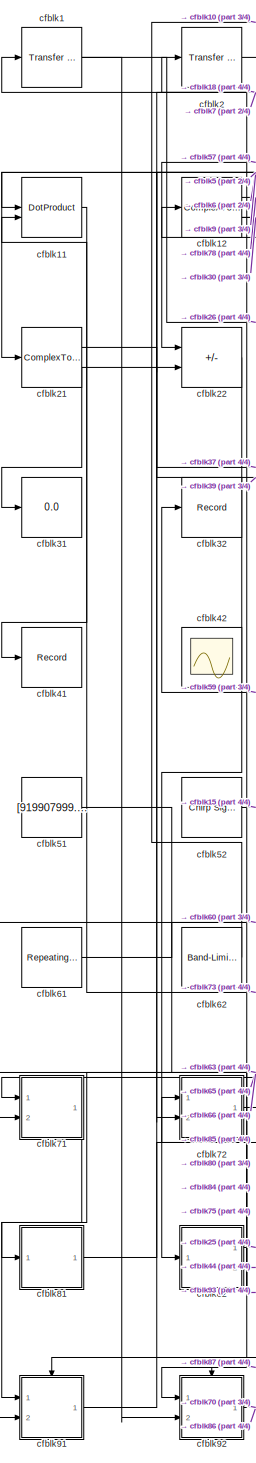
[diagram: root canvas - part 1/4, left side, full height]
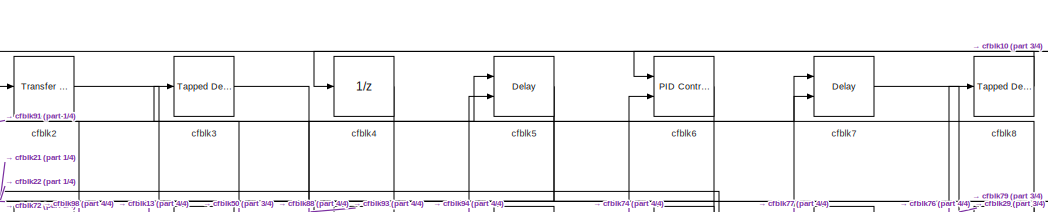
[diagram: root canvas - part 2/4, top center region]
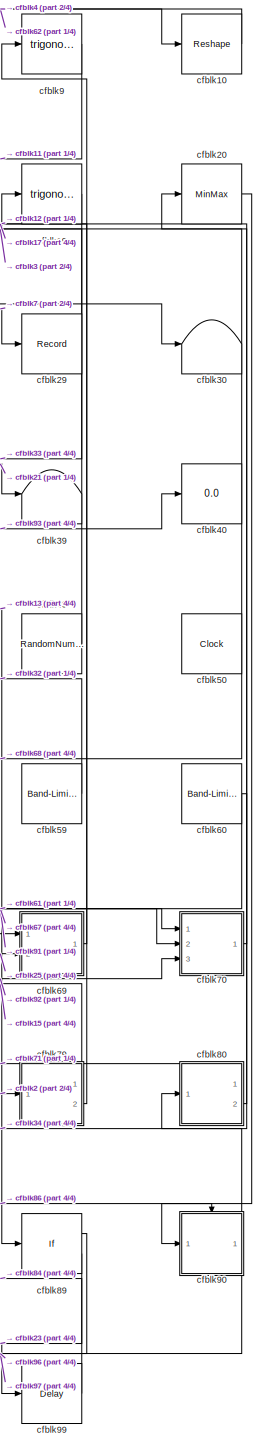
[diagram: root canvas - part 3/4, right side, full height]
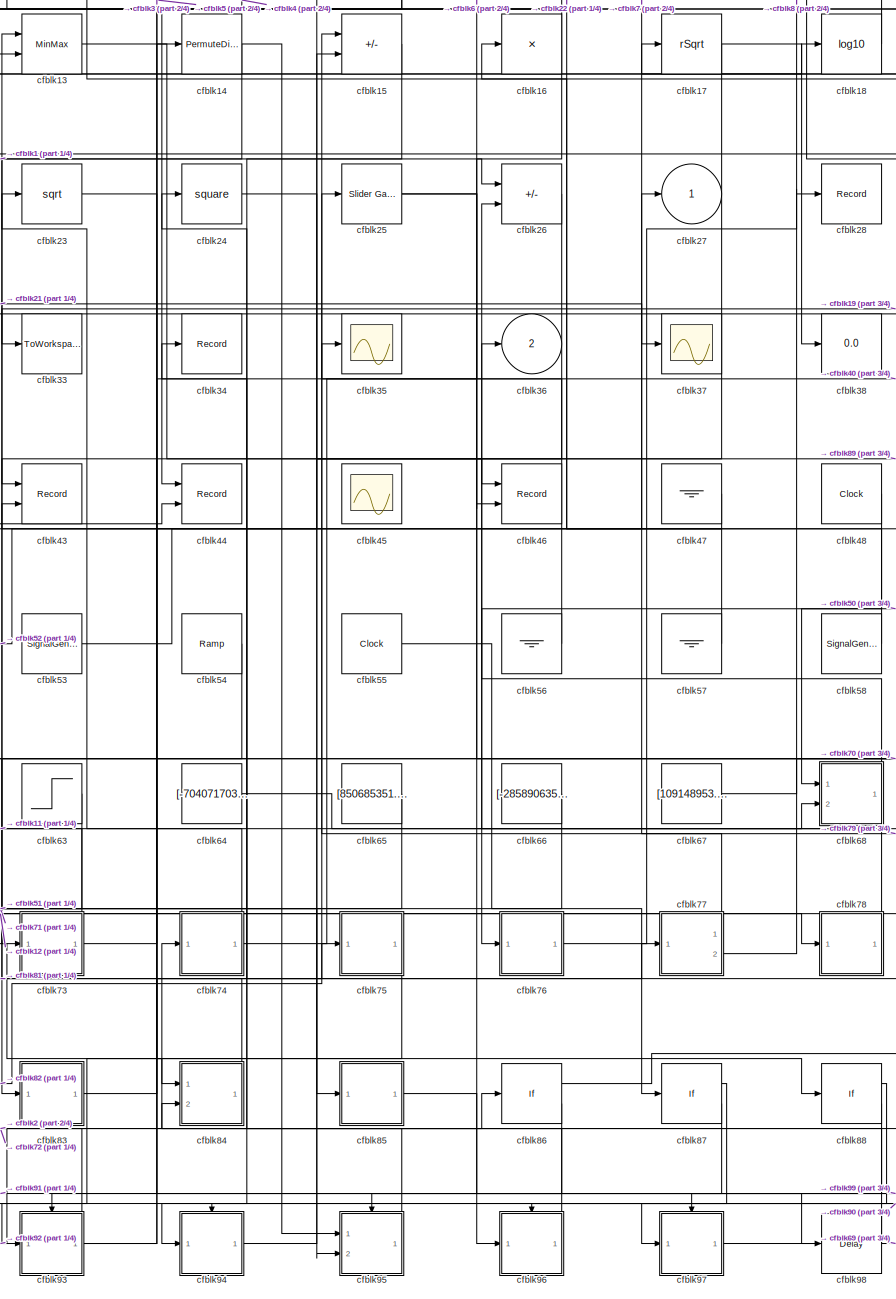
[diagram: root canvas - part 4/4, center side, full height]
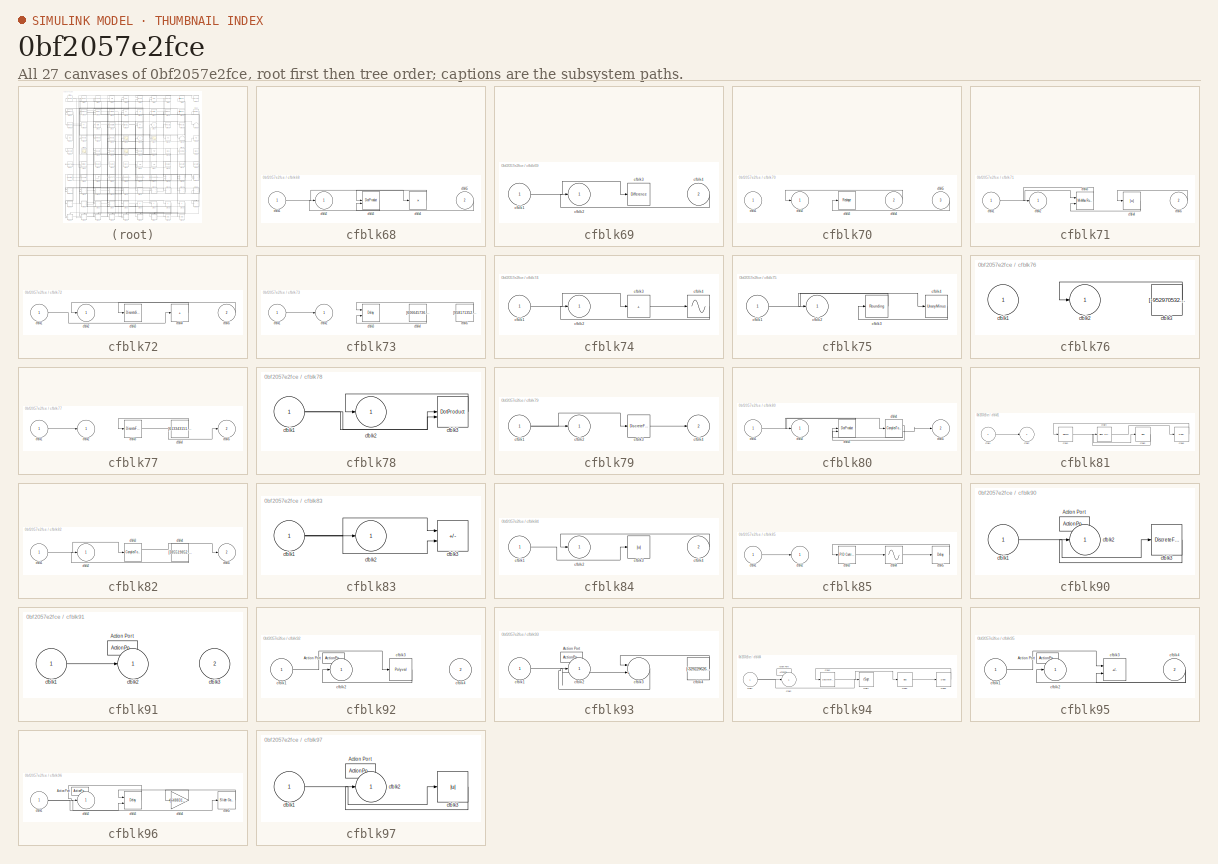
[diagram: thumbnail index - all 27 canvases of the model, root first then tree order]
MODEL slx_0bf2057e2fce
KIND model
CONFIG AbsTol = auto
CONFIG EnableMultiTasking = off
CONFIG FixedStep = auto
CONFIG MaxStep = auto
CONFIG MinStep = auto
CONFIG RelTol = 1e-3
CONFIG SampleTimeConstraint = Unconstrained
CONFIG SolverName = VariableStepAuto
CONFIG StartTime = 0.0
CONFIG StopTime = 10.0
BLOCK [Reference] cfblk1  REF=simulink/Discrete/Transfer Fcn
Real Zero
  Ports = [1, 1]
  SourceBlock = simulink/Discrete/Transfer Fcn\nReal Zero
  SourceProductBaseCode = SL
  SourceType = Transfer Fcn Real Zero
BLOCK [Reshape] cfblk10
  Ports = [1, 1]
BLOCK [DotProduct] cfblk11
  OutDataTypeStr = Inherit: Inherit via internal rule
BLOCK [ComplexToRealImag] cfblk12
  Ports = [1, 2]
BLOCK [MinMax] cfblk13
  Inputs = 2
  Ports = [2, 1]
BLOCK [PermuteDimensions] cfblk14
BLOCK [Sum] cfblk15
  IconShape = rectangular
  Inputs = +-
  Ports = [2, 1]
BLOCK [Product] cfblk16
  Inputs = *
  Ports = [1, 1]
BLOCK [Sqrt] cfblk17
  AlgorithmType = Newton-Raphson
  Operator = rSqrt
BLOCK [Math] cfblk18
  Operator = log10
  Ports = [1, 1]
BLOCK [Trigonometry] cfblk19
  Ports = [1, 1]
BLOCK [Reference] cfblk2  REF=simulink/Discrete/Transfer Fcn
First Order
  Ports = [1, 1]
  SourceBlock = simulink/Discrete/Transfer Fcn\nFirst Order
  SourceProductBaseCode = SL
  SourceType = First Order Transfer Fcn
BLOCK [MinMax] cfblk20
  Ports = [1, 1]
BLOCK [ComplexToMagnitudeAngle] cfblk21
  Ports = [1, 2]
BLOCK [Sum] cfblk22
  IconShape = rectangular
  Inputs = +-
  Ports = [2, 1]
BLOCK [Sqrt] cfblk23
BLOCK [Math] cfblk24
  Operator = square
  Ports = [1, 1]
BLOCK [Reference] cfblk25  REF=simulink/Math
Operations/Slider
Gain
  Ports = [1, 1]
  SourceBlock = simulink/Math\nOperations/Slider\nGain
  SourceProductBaseCode = SL
  SourceType = Slider Gain
BLOCK [Sum] cfblk26
  IconShape = rectangular
  Inputs = +-
  Ports = [2, 1]
BLOCK [Outport] cfblk27
BLOCK [Record] cfblk28
  FileSettingsInternal = {"entries":[{"content":{"excelSettings":{"content":{},"type":"Streamout.ExcelSettings"}},"type":"Streamout.FileSettingStorage","uuid":"16329020-b7b2-48e2-bef7-29498af02094"}],"packageUris":["http://schema.mathworks.com/mf0/streamout_blocks/R2020a"],"version":"1.0"}
  Ports = [1]
  SignalsInternal = {"entries":[{"content":{"signals":[{"content":{"blockPath":["sampleModel151/cfblk28"],"channel":[],"dimensions":[1],"domain":"sampleModel151/cfblk28","lineColor":"#fe330a","plots":[1],"port":1,"sid":[""],"signalID":5566,"signalName":"cfblk77:2"},"type":"RecordBlkView.Signal","uuid":"cbec37e1-0653-4d3b-993b-30f071d7b7c2"}]},"type":"RecordBlkView.InputSignals","uuid":"1aea9fb2-e907-4a06-aea3-794993e...<+99ch>
  VisualizationBindings = {"sparklinesplugin":{"info":[{"bindingParametersList":[],"subplotID":1}]}}
BLOCK [Record] cfblk29
  FileSettingsInternal = {"entries":[{"content":{"excelSettings":{"content":{},"type":"Streamout.ExcelSettings"}},"type":"Streamout.FileSettingStorage","uuid":"ad175cd4-5bed-4ac1-be59-b4bcf34f1e7c"}],"packageUris":["http://schema.mathworks.com/mf0/streamout_blocks/R2020a"],"version":"1.0"}
  Ports = [1]
  SignalsInternal = {"entries":[{"content":{"signals":[{"content":{"blockPath":["sampleModel151/cfblk29"],"channel":[],"dimensions":[1,1],"domain":"sampleModel151/cfblk29","lineColor":"#22b573","plots":[1],"port":1,"sid":[""],"signalID":5570,"signalName":"cfblk7"},"type":"RecordBlkView.Signal","uuid":"59788e8c-d7b2-4cd3-8900-8817d59cbc28"}]},"type":"RecordBlkView.InputSignals","uuid":"d411062e-e278-425d-97f2-c320e6c0...<+98ch>
  VisualizationBindings = {"sparklinesplugin":{"info":[{"bindingParametersList":[],"subplotID":1}]}}
BLOCK [Reference] cfblk3  REF=simulink/Discrete/Tapped Delay
  Ports = [1, 1]
  SourceBlock = simulink/Discrete/Tapped Delay
  SourceProductBaseCode = SL
  SourceType = Tapped Delay Line
BLOCK [Terminator] cfblk30
BLOCK [Display] cfblk31
  Decimation = 1
  Ports = [1]
BLOCK [Record] cfblk32
  FileSettingsInternal = {"entries":[{"content":{"excelSettings":{"content":{},"type":"Streamout.ExcelSettings"}},"type":"Streamout.FileSettingStorage","uuid":"e17f7bcd-ee65-47d5-ad36-393b5ddf6025"}],"packageUris":["http://schema.mathworks.com/mf0/streamout_blocks/R2020a"],"version":"1.0"}
  Ports = [1]
  SignalsInternal = {"entries":[{"content":{"signals":[{"content":{"blockPath":["sampleModel151/cfblk32"],"channel":[],"dimensions":[1],"domain":"sampleModel151/cfblk32","lineColor":"#139fff","plots":[1],"port":1,"sid":[""],"signalID":5602,"signalName":"cfblk59"},"type":"RecordBlkView.Signal","uuid":"9c12727e-2af6-4ba1-9340-e75212aef403"}]},"type":"RecordBlkView.InputSignals","uuid":"08633602-5334-4035-af5c-359580bce...<+97ch>
  VisualizationBindings = {"sparklinesplugin":{"info":[{"bindingParametersList":[],"subplotID":1}]}}
BLOCK [ToWorkspace] cfblk33
  FixptAsFi = on
  MaxDataPoints = inf
  Ports = [1]
  SampleTime = -1
  SaveFormat = Timeseries
  VariableName = onnoozt
BLOCK [Record] cfblk34
  FileSettingsInternal = {"entries":[{"content":{"excelSettings":{"content":{},"type":"Streamout.ExcelSettings"}},"type":"Streamout.FileSettingStorage","uuid":"80bf3479-7660-47d1-b758-6739f5e518e5"}],"packageUris":["http://schema.mathworks.com/mf0/streamout_blocks/R2020a"],"version":"1.0"}
  Ports = [1]
  SignalsInternal = {"entries":[{"content":{"signals":[{"content":{"blockPath":["sampleModel151/cfblk34"],"channel":[],"dimensions":[1],"domain":"sampleModel151/cfblk34","lineColor":"#0072bd","plots":[1],"port":1,"sid":[""],"signalID":5574,"signalName":"cfblk90"},"type":"RecordBlkView.Signal","uuid":"52cf2cfa-6272-4b00-98cf-892733082b01"}]},"type":"RecordBlkView.InputSignals","uuid":"b0825b05-81fc-4d9b-a675-fd2775611...<+97ch>
  VisualizationBindings = {"sparklinesplugin":{"info":[{"bindingParametersList":[],"subplotID":1}]}}
BLOCK [Scope] cfblk35
  Floating = off
  NumInputPorts = 1
  Ports = [1]
BLOCK [Outport] cfblk36
  Port = 2
BLOCK [Scope] cfblk37
  Floating = off
  NumInputPorts = 1
  Ports = [1]
BLOCK [Display] cfblk38
  Decimation = 1
  Ports = [1]
BLOCK [Terminator] cfblk39
BLOCK [UnitDelay] cfblk4
  HasFrameUpgradeWarning = on
BLOCK [Display] cfblk40
  Decimation = 1
  Ports = [1]
BLOCK [Record] cfblk41
  FileSettingsInternal = {"entries":[{"content":{"excelSettings":{"content":{},"type":"Streamout.ExcelSettings"}},"type":"Streamout.FileSettingStorage","uuid":"e783f573-5e51-434e-8b39-352c88833e99"}],"packageUris":["http://schema.mathworks.com/mf0/streamout_blocks/R2020a"],"version":"1.0"}
  Ports = [1]
  SignalsInternal = {"entries":[{"content":{"signals":[{"content":{"blockPath":["sampleModel151/cfblk41"],"channel":[],"dimensions":[1],"domain":"sampleModel151/cfblk41","lineColor":"#d95319","plots":[1],"port":1,"sid":[""],"signalID":5578,"signalName":"cfblk11"},"type":"RecordBlkView.Signal","uuid":"9378f9bf-08aa-425a-ab1e-6e49c199abac"}]},"type":"RecordBlkView.InputSignals","uuid":"4020c576-885d-4cd6-9814-44353d409...<+97ch>
  VisualizationBindings = {"sparklinesplugin":{"info":[{"bindingParametersList":[],"subplotID":1}]}}
BLOCK [Scope] cfblk42
  Floating = on
  NumInputPorts = 1
  Ports = []
BLOCK [Record] cfblk43
  CompatibilityTag = XY
  FileSettingsInternal = {"entries":[{"content":{"excelSettings":{"content":{},"type":"Streamout.ExcelSettings"}},"type":"Streamout.FileSettingStorage","uuid":"0c75c6a2-1ebc-4dbd-9707-8aa0bfb7056d"}],"packageUris":["http://schema.mathworks.com/mf0/streamout_blocks/R2020a"],"version":"1.0"}
  Layout = [1 1]
  Ports = [2]
  SignalsInternal = {"entries":[{"content":{"signals":[{"content":{"blockPath":["sampleModel151/cfblk43"],"channel":[],"dimensions":[1],"domain":"sampleModel151/cfblk43","lineColor":"#a2142f","plots":[1],"port":1,"sid":[""],"signalID":5582,"signalName":"cfblk26"},"type":"RecordBlkView.Signal","uuid":"05fc9d93-6de0-4f23-9265-e6d9e86d6584"},{"content":{"blockPath":["sampleModel151/cfblk43"],"channel":[],"dimensions":[1...<+383ch>
  VisualizationBindings = {"xyplotplugin":{"info":[{"series":[{"bindingParametersList":[{"parameter":"X-Axis","signalID":5582,"signalName":"cfblk26"},{"parameter":"Y-Axis","signalID":5606,"signalName":"cfblk47"}],"seriesID":51947}],"subplotID":1}]}}
BLOCK [Record] cfblk44
  CompatibilityTag = XY
  FileSettingsInternal = {"entries":[{"content":{"excelSettings":{"content":{},"type":"Streamout.ExcelSettings"}},"type":"Streamout.FileSettingStorage","uuid":"e408540b-f554-4ccd-875e-bc098b567ff3"}],"packageUris":["http://schema.mathworks.com/mf0/streamout_blocks/R2020a"],"version":"1.0"}
  Layout = [1 1]
  Ports = [2]
  SignalsInternal = {"entries":[{"content":{"signals":[{"content":{"blockPath":["sampleModel151/cfblk44"],"channel":[],"dimensions":[1],"domain":"sampleModel151/cfblk44","lineColor":"#a2142f","plots":[1],"port":1,"sid":[""],"signalID":5586,"signalName":"cfblk16"},"type":"RecordBlkView.Signal","uuid":"6af45d05-4fcc-41dc-a0e5-1353e5ef8c24"},{"content":{"blockPath":["sampleModel151/cfblk44"],"channel":[],"dimensions":[1...<+385ch>
  VisualizationBindings = {"xyplotplugin":{"info":[{"series":[{"bindingParametersList":[{"parameter":"X-Axis","signalID":5586,"signalName":"cfblk16"},{"parameter":"Y-Axis","signalID":5590,"signalName":"cfblk82:2"}],"seriesID":36672}],"subplotID":1}]}}
BLOCK [Scope] cfblk45
  Floating = on
  NumInputPorts = 1
  Ports = []
BLOCK [Record] cfblk46
  CompatibilityTag = XY
  FileSettingsInternal = {"entries":[{"content":{"excelSettings":{"content":{},"type":"Streamout.ExcelSettings"}},"type":"Streamout.FileSettingStorage","uuid":"872aefc3-b221-4a71-9802-efcb06a78721"}],"packageUris":["http://schema.mathworks.com/mf0/streamout_blocks/R2020a"],"version":"1.0"}
  Layout = [1 1]
  Ports = [2]
  SignalsInternal = {"entries":[{"content":{"signals":[{"content":{"blockPath":["sampleModel151/cfblk46"],"channel":[],"dimensions":[1],"domain":"sampleModel151/cfblk46","lineColor":"#a2142f","plots":[1],"port":1,"sid":[""],"signalID":5594,"signalName":"cfblk24"},"type":"RecordBlkView.Signal","uuid":"f73d4481-3b9c-43d6-816d-b610603f159a"},{"content":{"blockPath":["sampleModel151/cfblk46"],"channel":[],"dimensions":[1...<+383ch>
  VisualizationBindings = {"xyplotplugin":{"info":[{"series":[{"bindingParametersList":[{"parameter":"X-Axis","signalID":5594,"signalName":"cfblk24"},{"parameter":"Y-Axis","signalID":5598,"signalName":"cfblk16"}],"seriesID":29055}],"subplotID":1}]}}
BLOCK [Ground] cfblk47
BLOCK [Clock] cfblk48
BLOCK [RandomNumber] cfblk49
  Mean = [30540.773261]
  SampleTime = 0.1
  Seed = [260701924.000000]
  Variance = [36221.773960]
BLOCK [Delay] cfblk5
  InputPortMap = u0,e6
  Ports = [2, 1]
  SampleTime = 1
  ShowEnablePort = on
BLOCK [Clock] cfblk50
BLOCK [Constant] cfblk51
  SampleTime = 1
  Value = [919907999.976318]
BLOCK [Reference] cfblk52  REF=simulink/Sources/Chirp Signal
  Ports = [0, 1]
  SourceBlock = simulink/Sources/Chirp Signal
  SourceProductBaseCode = SL
  SourceType = chirp
BLOCK [SignalGenerator] cfblk53
  Amplitude = [-680922363.172468]
  Ports = [0, 1]
  WaveForm = sawtooth
BLOCK [Reference] cfblk54  REF=simulink/Sources/Ramp
  Ports = [0, 1]
  SourceBlock = simulink/Sources/Ramp
  SourceProductBaseCode = SL
  SourceType = Ramp
BLOCK [Clock] cfblk55
BLOCK [Ground] cfblk56
BLOCK [Ground] cfblk57
BLOCK [SignalGenerator] cfblk58
  Amplitude = [-424760600.039455]
  Ports = [0, 1]
  WaveForm = sawtooth
BLOCK [Reference] cfblk59  REF=simulink/Sources/Band-Limited
White Noise
  Ports = [0, 1]
  SourceBlock = simulink/Sources/Band-Limited\nWhite Noise
  SourceProductBaseCode = SL
  SourceType = Band-Limited White Noise.
BLOCK [Reference] cfblk6  REF=slpidlib/PID Controller (2DOF)
  Ports = [2, 1]
  SourceBlock = slpidlib/PID Controller (2DOF)
  SourceProductBaseCode = SL
  SourceType = PID 2dof
BLOCK [Reference] cfblk60  REF=simulink/Sources/Band-Limited
White Noise
  Ports = [0, 1]
  SourceBlock = simulink/Sources/Band-Limited\nWhite Noise
  SourceProductBaseCode = SL
  SourceType = Band-Limited White Noise.
BLOCK [Reference] cfblk61  REF=simulink/Sources/Repeating
Sequence
Interpolated
  Ports = [0, 1]
  SourceBlock = simulink/Sources/Repeating\nSequence\nInterpolated
  SourceProductBaseCode = SL
  SourceType = Repeating Sequence Interpolated
BLOCK [Reference] cfblk62  REF=simulink/Sources/Band-Limited
White Noise
  Ports = [0, 1]
  SourceBlock = simulink/Sources/Band-Limited\nWhite Noise
  SourceProductBaseCode = SL
  SourceType = Band-Limited White Noise.
BLOCK [Step] cfblk63
  After = [23174660.640238]
  Before = [11276169.714796]
  SampleTime = 0
  Time = [4.000000]
BLOCK [Constant] cfblk64
  SampleTime = 1
  Value = [-704071703.369690]
BLOCK [Constant] cfblk65
  SampleTime = 1
  Value = [850685351.348287]
BLOCK [Constant] cfblk66
  SampleTime = 1
  Value = [-285890635.746672]
BLOCK [Constant] cfblk67
  SampleTime = 1
  Value = [109148953.023696]
BLOCK [SubSystem] cfblk68
  Ports = [2, 1]
  RequestExecContextInheritance = off
BLOCK [Inport] cfblk68/cfblk1
BLOCK [Outport] cfblk68/cfblk2
BLOCK [DotProduct] cfblk68/cfblk3
  OutDataTypeStr = Inherit: Inherit via internal rule
BLOCK [Product] cfblk68/cfblk4
  Inputs = *
  Ports = [1, 1]
BLOCK [Inport] cfblk68/cfblk5
  Port = 2
BLOCK [SubSystem] cfblk69
  Ports = [2, 1]
  RequestExecContextInheritance = off
BLOCK [Inport] cfblk69/cfblk1
BLOCK [Outport] cfblk69/cfblk2
BLOCK [Reference] cfblk69/cfblk3  REF=simulink/Discrete/Difference
  Ports = [1, 1]
  SourceBlock = simulink/Discrete/Difference
  SourceProductBaseCode = SL
  SourceType = Difference
BLOCK [Inport] cfblk69/cfblk4
  Port = 2
BLOCK [Delay] cfblk7
  InputPortMap = u0,e6
  Ports = [2, 1]
  SampleTime = 1
  ShowEnablePort = on
BLOCK [SubSystem] cfblk70
  Ports = [3, 1]
  RequestExecContextInheritance = off
BLOCK [Inport] cfblk70/cfblk1
BLOCK [Outport] cfblk70/cfblk2
BLOCK [Reshape] cfblk70/cfblk3
  Ports = [1, 1]
BLOCK [Inport] cfblk70/cfblk4
  Port = 2
BLOCK [Inport] cfblk70/cfblk5
  Port = 3
BLOCK [SubSystem] cfblk71
  Ports = [2, 1]
  RequestExecContextInheritance = off
BLOCK [Inport] cfblk71/cfblk1
BLOCK [Outport] cfblk71/cfblk2
BLOCK [Reference] cfblk71/cfblk3  REF=simulink/Math
Operations/MinMax
Running
Resettable
  Ports = [2, 1]
  SourceBlock = simulink/Math\nOperations/MinMax\nRunning\nResettable
  SourceProductBaseCode = SL
  SourceType = MinMax Running Resettable
BLOCK [Abs] cfblk71/cfblk4
  SaturateOnIntegerOverflow = off
BLOCK [Inport] cfblk71/cfblk5
  Port = 2
BLOCK [SubSystem] cfblk72
  Ports = [2, 1]
  RequestExecContextInheritance = off
BLOCK [Inport] cfblk72/cfblk1
BLOCK [Outport] cfblk72/cfblk2
BLOCK [DiscreteStateSpace] cfblk72/cfblk3
BLOCK [Sum] cfblk72/cfblk4
  IconShape = rectangular
  Inputs = +
  Ports = [1, 1]
BLOCK [Inport] cfblk72/cfblk5
  Port = 2
BLOCK [SubSystem] cfblk73
  Ports = [1, 1]
  RequestExecContextInheritance = off
BLOCK [Inport] cfblk73/cfblk1
BLOCK [Outport] cfblk73/cfblk2
BLOCK [Delay] cfblk73/cfblk3
  DelayLengthSource = Input port
  InputPortMap = u0,p1
  Ports = [2, 1]
  SampleTime = 1
BLOCK [Constant] cfblk73/cfblk4
  SampleTime = 1
  Value = [606645736.850236]
BLOCK [Constant] cfblk73/cfblk5
  SampleTime = 1
  Value = [958171352.098820]
BLOCK [SubSystem] cfblk74
  Ports = [1, 1]
  RequestExecContextInheritance = off
BLOCK [Inport] cfblk74/cfblk1
BLOCK [Outport] cfblk74/cfblk2
BLOCK [Sum] cfblk74/cfblk3
  IconShape = rectangular
  Inputs = +
  Ports = [1, 1]
BLOCK [Sin] cfblk74/cfblk4
  Ports = [1, 1]
  SampleTime = 0
  TimeSource = Use external signal
BLOCK [SubSystem] cfblk75
  Ports = [1, 1]
  RequestExecContextInheritance = off
BLOCK [Inport] cfblk75/cfblk1
BLOCK [Outport] cfblk75/cfblk2
BLOCK [Rounding] cfblk75/cfblk3
BLOCK [UnaryMinus] cfblk75/cfblk4
BLOCK [SubSystem] cfblk76
  Ports = [1, 1]
  RequestExecContextInheritance = off
BLOCK [Inport] cfblk76/cfblk1
BLOCK [Outport] cfblk76/cfblk2
BLOCK [Constant] cfblk76/cfblk3
  SampleTime = 1
  Value = [-952970532.415323]
BLOCK [SubSystem] cfblk77
  Ports = [1, 2]
  RequestExecContextInheritance = off
BLOCK [Inport] cfblk77/cfblk1
BLOCK [Outport] cfblk77/cfblk2
BLOCK [DiscreteFir] cfblk77/cfblk3
  InputPortMap = u0
  OutputPortMap = o0
  Ports = [1, 1]
  SampleTime = 1
BLOCK [Constant] cfblk77/cfblk4
  SampleTime = 1
  Value = [613343151.446555]
BLOCK [Outport] cfblk77/cfblk5
  Port = 2
BLOCK [SubSystem] cfblk78
  Ports = [1, 1]
  RequestExecContextInheritance = off
BLOCK [Inport] cfblk78/cfblk1
BLOCK [Outport] cfblk78/cfblk2
BLOCK [DotProduct] cfblk78/cfblk3
  OutDataTypeStr = Inherit: Inherit via internal rule
BLOCK [SubSystem] cfblk79
  Ports = [1, 2]
  RequestExecContextInheritance = off
BLOCK [Inport] cfblk79/cfblk1
BLOCK [Outport] cfblk79/cfblk2
BLOCK [DiscreteFir] cfblk79/cfblk3
  InputPortMap = u0
  OutputPortMap = o0
  Ports = [1, 1]
  SampleTime = 1
BLOCK [Outport] cfblk79/cfblk4
  Port = 2
BLOCK [Reference] cfblk8  REF=simulink/Discrete/Tapped Delay
  Ports = [1, 1]
  SourceBlock = simulink/Discrete/Tapped Delay
  SourceProductBaseCode = SL
  SourceType = Tapped Delay Line
BLOCK [SubSystem] cfblk80
  Ports = [1, 2]
  RequestExecContextInheritance = off
BLOCK [Inport] cfblk80/cfblk1
BLOCK [Outport] cfblk80/cfblk2
BLOCK [DotProduct] cfblk80/cfblk3
  OutDataTypeStr = Inherit: Inherit via internal rule
BLOCK [ComplexToMagnitudeAngle] cfblk80/cfblk4
  Ports = [1, 2]
BLOCK [Outport] cfblk80/cfblk5
  Port = 2
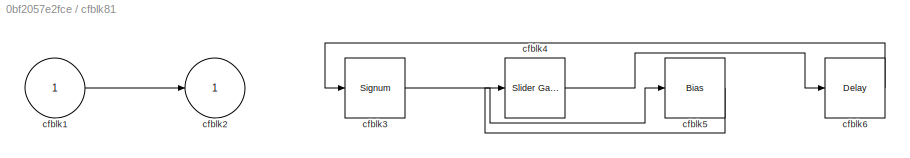
BLOCK [SubSystem] cfblk81
  Ports = [1, 1]
  RequestExecContextInheritance = off
BLOCK [Inport] cfblk81/cfblk1
BLOCK [Outport] cfblk81/cfblk2
BLOCK [Signum] cfblk81/cfblk3
BLOCK [Reference] cfblk81/cfblk4  REF=simulink/Math
Operations/Slider
Gain
  Ports = [1, 1]
  SourceBlock = simulink/Math\nOperations/Slider\nGain
  SourceProductBaseCode = SL
  SourceType = Slider Gain
BLOCK [Bias] cfblk81/cfblk5
  Bias = [575150520.088075]
  SaturateOnIntegerOverflow = off
BLOCK [Delay] cfblk81/cfblk6
  InputPortMap = u0
  Ports = [1, 1]
  SampleTime = 1
BLOCK [SubSystem] cfblk82
  Ports = [1, 2]
  RequestExecContextInheritance = off
BLOCK [Inport] cfblk82/cfblk1
BLOCK [Outport] cfblk82/cfblk2
BLOCK [ComplexToRealImag] cfblk82/cfblk3
  Ports = [1, 2]
BLOCK [Constant] cfblk82/cfblk4
  SampleTime = 1
  Value = [385519852.489659]
BLOCK [Outport] cfblk82/cfblk5
  Port = 2
BLOCK [SubSystem] cfblk83
  Ports = [1, 1]
  RequestExecContextInheritance = off
BLOCK [Inport] cfblk83/cfblk1
BLOCK [Outport] cfblk83/cfblk2
BLOCK [Sum] cfblk83/cfblk3
  IconShape = rectangular
  Inputs = +-
  Ports = [2, 1]
BLOCK [SubSystem] cfblk84
  Ports = [2, 1]
  RequestExecContextInheritance = off
BLOCK [Inport] cfblk84/cfblk1
BLOCK [Outport] cfblk84/cfblk2
BLOCK [Abs] cfblk84/cfblk3
  SaturateOnIntegerOverflow = off
BLOCK [Inport] cfblk84/cfblk4
  Port = 2
BLOCK [SubSystem] cfblk85
  Ports = [1, 1]
  RequestExecContextInheritance = off
BLOCK [Inport] cfblk85/cfblk1
BLOCK [Outport] cfblk85/cfblk2
BLOCK [Reference] cfblk85/cfblk3  REF=slpidlib/PID Controller
  Ports = [1, 1]
  SourceBlock = slpidlib/PID Controller
  SourceProductBaseCode = SL
  SourceType = PID 1dof
BLOCK [Sin] cfblk85/cfblk4
  Ports = [1, 1]
  SampleTime = 0
  TimeSource = Use external signal
BLOCK [Delay] cfblk85/cfblk5
  InputPortMap = u0
  Ports = [1, 1]
  SampleTime = 1
BLOCK [If] cfblk86
  IfExpression = u1 >= 0
  Ports = [1, 2]
  SampleTime = 1
BLOCK [If] cfblk87
  IfExpression = u1 >= 0
  Ports = [1, 2]
  SampleTime = 1
BLOCK [If] cfblk88
  IfExpression = u1 >= 0
  Ports = [1, 2]
  SampleTime = 1
BLOCK [If] cfblk89
  IfExpression = u1 >= 0
  Ports = [1, 2]
  SampleTime = 1
BLOCK [Trigonometry] cfblk9
  Ports = [1, 1]
BLOCK [SubSystem] cfblk90
  Ports = [1, 1, 0, 0, 0, 0, 0, 1]
  RequestExecContextInheritance = off
  TreatAsAtomicUnit = on
BLOCK [ActionPort] cfblk90/Action Port
  ActionPortLabel = if(u1 >= 0)
BLOCK [Inport] cfblk90/cfblk1
BLOCK [Outport] cfblk90/cfblk2
BLOCK [DiscreteFir] cfblk90/cfblk3
  InputPortMap = u0
  OutputPortMap = o0
  Ports = [1, 1]
BLOCK [SubSystem] cfblk91
  Ports = [2, 1, 0, 0, 0, 0, 0, 1]
  RequestExecContextInheritance = off
  TreatAsAtomicUnit = on
BLOCK [ActionPort] cfblk91/Action Port
  ActionPortLabel = else
BLOCK [Inport] cfblk91/cfblk1
BLOCK [Outport] cfblk91/cfblk2
BLOCK [Inport] cfblk91/cfblk3
  Port = 2
BLOCK [SubSystem] cfblk92
  Ports = [2, 1, 0, 0, 0, 0, 0, 1]
  RequestExecContextInheritance = off
  TreatAsAtomicUnit = on
BLOCK [ActionPort] cfblk92/Action Port
  ActionPortLabel = if(u1 >= 0)
BLOCK [Inport] cfblk92/cfblk1
BLOCK [Outport] cfblk92/cfblk2
BLOCK [Polyval] cfblk92/cfblk3
  Coefs = [ +2.081618890e-019, -1.441693666e-014, +4.719686976e-010, -8.536869453e-006, +1.621573104e-001, -8.087801117e+001 ]
BLOCK [Inport] cfblk92/cfblk4
  Port = 2
BLOCK [SubSystem] cfblk93
  Ports = [1, 1, 0, 0, 0, 0, 0, 1]
  RequestExecContextInheritance = off
  TreatAsAtomicUnit = on
BLOCK [ActionPort] cfblk93/Action Port
  ActionPortLabel = else
BLOCK [Inport] cfblk93/cfblk1
BLOCK [Outport] cfblk93/cfblk2
BLOCK [Sum] cfblk93/cfblk3
  Inputs = |++
  Ports = [2, 1]
BLOCK [Constant] cfblk93/cfblk4
  SampleTime = 1
  Value = [-329229626.774821]
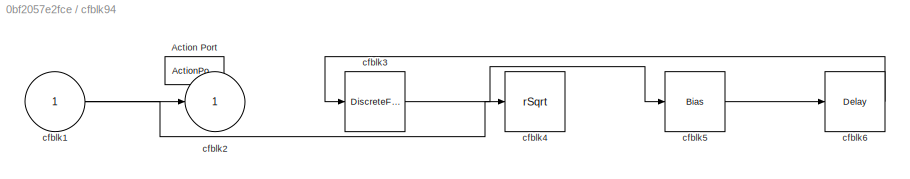
BLOCK [SubSystem] cfblk94
  Ports = [1, 1, 0, 0, 0, 0, 0, 1]
  RequestExecContextInheritance = off
  TreatAsAtomicUnit = on
BLOCK [ActionPort] cfblk94/Action Port
  ActionPortLabel = if(u1 >= 0)
BLOCK [Inport] cfblk94/cfblk1
BLOCK [Outport] cfblk94/cfblk2
BLOCK [DiscreteFilter] cfblk94/cfblk3
  InputPortMap = u0
  Ports = [1, 1]
BLOCK [Sqrt] cfblk94/cfblk4
  AlgorithmType = Newton-Raphson
  Operator = rSqrt
BLOCK [Bias] cfblk94/cfblk5
  Bias = [283350324.778688]
  SaturateOnIntegerOverflow = off
BLOCK [Delay] cfblk94/cfblk6
  InputPortMap = u0
  Ports = [1, 1]
BLOCK [SubSystem] cfblk95
  Ports = [2, 1, 0, 0, 0, 0, 0, 1]
  RequestExecContextInheritance = off
  TreatAsAtomicUnit = on
BLOCK [ActionPort] cfblk95/Action Port
  ActionPortLabel = else
BLOCK [Inport] cfblk95/cfblk1
BLOCK [Outport] cfblk95/cfblk2
BLOCK [Sum] cfblk95/cfblk3
  IconShape = rectangular
  Inputs = +-
  Ports = [2, 1]
BLOCK [Inport] cfblk95/cfblk4
  Port = 2
BLOCK [SubSystem] cfblk96
  Ports = [1, 1, 0, 0, 0, 0, 0, 1]
  RequestExecContextInheritance = off
  TreatAsAtomicUnit = on
BLOCK [ActionPort] cfblk96/Action Port
  ActionPortLabel = if(u1 >= 0)
BLOCK [Inport] cfblk96/cfblk1
BLOCK [Outport] cfblk96/cfblk2
BLOCK [Delay] cfblk96/cfblk3
  InputPortMap = u0,e6
  Ports = [2, 1]
  ShowEnablePort = on
BLOCK [Gain] cfblk96/cfblk4
  Gain = [648831210.103577]
BLOCK [Reference] cfblk96/cfblk5  REF=simulink/Math
Operations/Slider
Gain
  Ports = [1, 1]
  SourceBlock = simulink/Math\nOperations/Slider\nGain
  SourceProductBaseCode = SL
  SourceType = Slider Gain
BLOCK [SubSystem] cfblk97
  Ports = [1, 1, 0, 0, 0, 0, 0, 1]
  RequestExecContextInheritance = off
  TreatAsAtomicUnit = on
BLOCK [ActionPort] cfblk97/Action Port
  ActionPortLabel = else
BLOCK [Inport] cfblk97/cfblk1
BLOCK [Outport] cfblk97/cfblk2
BLOCK [Abs] cfblk97/cfblk3
  SaturateOnIntegerOverflow = off
BLOCK [Delay] cfblk98
  InputPortMap = u0
  Ports = [1, 1]
  SampleTime = 1
BLOCK [Delay] cfblk99
  InputPortMap = u0
  Ports = [1, 1]
  SampleTime = 1
LINE cfblk10:1 -> cfblk4:1
LINE cfblk11:1 -> cfblk41:1
LINE cfblk12:1 -> cfblk78:1
NET cfblk12:2 -> cfblk18:1, cfblk30:1
LINE cfblk13:1 -> cfblk89:1
NET cfblk14:1 -> cfblk83:1, cfblk95:1
LINE cfblk15:1 -> cfblk94:1
NET cfblk16:1 -> cfblk44:1, cfblk46:2
NET cfblk17:1 -> cfblk38:1, cfblk95:2
LINE cfblk18:1 -> cfblk1:1
LINE cfblk19:1 -> cfblk33:1
NET cfblk1:1 -> cfblk26:1, cfblk92:2
LINE cfblk20:1 -> cfblk90:1
LINE cfblk21:1 -> cfblk39:1
NET cfblk21:2 -> cfblk31:1, cfblk37:1
LINE cfblk22:1 -> cfblk82:1
LINE cfblk23:1 -> cfblk99:1
LINE cfblk24:1 -> cfblk46:1
NET cfblk25:1 -> cfblk69:2, cfblk98:1
LINE cfblk26:1 -> cfblk43:1
LINE cfblk2:1 -> cfblk79:1
LINE cfblk3:1 -> cfblk88:1
LINE cfblk47:1 -> cfblk43:2
LINE cfblk48:1 -> cfblk76:1
LINE cfblk49:1 -> cfblk19:1
LINE cfblk4:1 -> cfblk13:2
NET cfblk50:1 -> cfblk3:1, cfblk68:1
LINE cfblk51:1 -> cfblk85:1
LINE cfblk52:1 -> cfblk15:2
LINE cfblk53:1 -> cfblk27:1
LINE cfblk54:1 -> cfblk73:1
LINE cfblk55:1 -> cfblk87:1
LINE cfblk56:1 -> cfblk35:1
LINE cfblk57:1 -> cfblk22:1
LINE cfblk58:1 -> cfblk16:1
LINE cfblk59:1 -> cfblk32:1
NET cfblk5:1 -> cfblk22:2, cfblk72:2
NET cfblk60:1 -> cfblk80:1, cfblk91:2
LINE cfblk61:1 -> cfblk70:2
LINE cfblk62:1 -> cfblk10:1
LINE cfblk63:1 -> cfblk81:1
LINE cfblk64:1 -> cfblk68:2
LINE cfblk65:1 -> cfblk71:2
LINE cfblk66:1 -> cfblk92:1
LINE cfblk67:1 -> cfblk70:1
LINE cfblk68/cfblk1:1 -> cfblk68/cfblk4:1
LINE cfblk68/cfblk3:1 -> cfblk68/cfblk2:1
LINE cfblk68/cfblk4:1 -> cfblk68/cfblk3:1
LINE cfblk68/cfblk5:1 -> cfblk68/cfblk3:2
LINE cfblk68:1 -> cfblk36:1
LINE cfblk69/cfblk1:1 -> cfblk69/cfblk3:1
LINE cfblk69/cfblk4:1 -> cfblk69/cfblk2:1
LINE cfblk69:1 -> cfblk9:1
LINE cfblk6:1 -> cfblk21:1
LINE cfblk70/cfblk4:1 -> cfblk70/cfblk2:1
LINE cfblk70/cfblk5:1 -> cfblk70/cfblk3:1
LINE cfblk70:1 -> cfblk20:1
LINE cfblk71/cfblk1:1 -> cfblk71/cfblk3:1
LINE cfblk71/cfblk3:1 -> cfblk71/cfblk2:1
LINE cfblk71/cfblk4:1 -> cfblk71/cfblk3:2
LINE cfblk71/cfblk5:1 -> cfblk71/cfblk4:1
LINE cfblk71:1 -> cfblk91:1
LINE cfblk72/cfblk1:1 -> cfblk72/cfblk4:1
LINE cfblk72/cfblk4:1 -> cfblk72/cfblk3:1
LINE cfblk72/cfblk5:1 -> cfblk72/cfblk2:1
LINE cfblk72:1 -> cfblk84:1
LINE cfblk73/cfblk1:1 -> cfblk73/cfblk2:1
LINE cfblk73/cfblk4:1 -> cfblk73/cfblk3:2
LINE cfblk73/cfblk5:1 -> cfblk73/cfblk3:1
NET cfblk73:1 -> cfblk11:2, cfblk14:1
LINE cfblk74/cfblk1:1 -> cfblk74/cfblk3:1
LINE cfblk74/cfblk3:1 -> cfblk74/cfblk4:1
LINE cfblk74/cfblk4:1 -> cfblk74/cfblk2:1
NET cfblk74:1 -> cfblk23:1, cfblk6:2
LINE cfblk75/cfblk1:1 -> cfblk75/cfblk4:1
LINE cfblk75/cfblk3:1 -> cfblk75/cfblk2:1
LINE cfblk75/cfblk4:1 -> cfblk75/cfblk3:1
LINE cfblk75:1 -> cfblk93:1
LINE cfblk76/cfblk3:1 -> cfblk76/cfblk2:1
LINE cfblk76:1 -> cfblk8:1
LINE cfblk77/cfblk1:1 -> cfblk77/cfblk2:1
LINE cfblk77/cfblk3:1 -> cfblk77/cfblk5:1
LINE cfblk77/cfblk4:1 -> cfblk77/cfblk3:1
LINE cfblk77:1 -> cfblk7:1
LINE cfblk77:2 -> cfblk28:1
NET cfblk78/cfblk1:1 -> cfblk78/cfblk3:1, cfblk78/cfblk3:2
LINE cfblk78/cfblk3:1 -> cfblk78/cfblk2:1
LINE cfblk78:1 -> cfblk26:2
NET cfblk79/cfblk1:1 -> cfblk79/cfblk2:1, cfblk79/cfblk3:1
LINE cfblk79/cfblk3:1 -> cfblk79/cfblk4:1
LINE cfblk79:1 -> cfblk15:1
LINE cfblk79:2 -> cfblk17:1
LINE cfblk7:1 -> cfblk29:1
LINE cfblk80/cfblk1:1 -> cfblk80/cfblk4:1
LINE cfblk80/cfblk3:1 -> cfblk80/cfblk2:1
LINE cfblk80/cfblk4:1 -> cfblk80/cfblk3:1
NET cfblk80/cfblk4:2 -> cfblk80/cfblk3:2, cfblk80/cfblk5:1
LINE cfblk80:1 -> cfblk71:1
LINE cfblk80:2 -> cfblk12:1
LINE cfblk81/cfblk1:1 -> cfblk81/cfblk2:1
LINE cfblk81/cfblk3:1 -> cfblk81/cfblk5:1
LINE cfblk81/cfblk4:1 -> cfblk81/cfblk6:1
LINE cfblk81/cfblk5:1 -> cfblk81/cfblk4:1
LINE cfblk81/cfblk6:1 -> cfblk81/cfblk3:1
LINE cfblk81:1 -> cfblk75:1
LINE cfblk82/cfblk1:1 -> cfblk82/cfblk3:1
LINE cfblk82/cfblk3:1 -> cfblk82/cfblk5:1
LINE cfblk82/cfblk4:1 -> cfblk82/cfblk2:1
LINE cfblk82:1 -> cfblk25:1
LINE cfblk82:2 -> cfblk44:2
NET cfblk83/cfblk1:1 -> cfblk83/cfblk2:1, cfblk83/cfblk3:1, cfblk83/cfblk3:2
LINE cfblk83:1 -> cfblk77:1
LINE cfblk84/cfblk1:1 -> cfblk84/cfblk3:1
LINE cfblk84/cfblk4:1 -> cfblk84/cfblk2:1
LINE cfblk84:1 -> cfblk13:1
LINE cfblk85/cfblk1:1 -> cfblk85/cfblk2:1
LINE cfblk85/cfblk3:1 -> cfblk85/cfblk4:1
LINE cfblk85/cfblk4:1 -> cfblk85/cfblk5:1
LINE cfblk85/cfblk5:1 -> cfblk85/cfblk3:1
LINE cfblk85:1 -> cfblk96:1
LINE cfblk86:1 -> cfblk90:ifaction
LINE cfblk86:2 -> cfblk91:ifaction
LINE cfblk87:1 -> cfblk92:ifaction
LINE cfblk87:2 -> cfblk93:ifaction
LINE cfblk88:1 -> cfblk94:ifaction
LINE cfblk88:2 -> cfblk95:ifaction
LINE cfblk89:1 -> cfblk96:ifaction
LINE cfblk89:2 -> cfblk97:ifaction
LINE cfblk8:1 -> cfblk6:1
LINE cfblk90/cfblk1:1 -> cfblk90/cfblk3:1
LINE cfblk90/cfblk3:1 -> cfblk90/cfblk2:1
NET cfblk90:1 -> cfblk34:1, cfblk97:1
LINE cfblk91/cfblk1:1 -> cfblk91/cfblk2:1
LINE cfblk91:1 -> cfblk7:2
LINE cfblk92/cfblk1:1 -> cfblk92/cfblk3:1
LINE cfblk92/cfblk3:1 -> cfblk92/cfblk2:1
NET cfblk92:1 -> cfblk70:3, cfblk86:1
LINE cfblk93/cfblk1:1 -> cfblk93/cfblk3:2
LINE cfblk93/cfblk3:1 -> cfblk93/cfblk2:1
LINE cfblk93/cfblk4:1 -> cfblk93/cfblk3:1
NET cfblk93:1 -> cfblk40:1, cfblk5:1, cfblk72:1
NET cfblk94/cfblk1:1 -> cfblk94/cfblk2:1, cfblk94/cfblk4:1
LINE cfblk94/cfblk3:1 -> cfblk94/cfblk5:1
LINE cfblk94/cfblk5:1 -> cfblk94/cfblk6:1
LINE cfblk94/cfblk6:1 -> cfblk94/cfblk3:1
LINE cfblk94:1 -> cfblk5:2
LINE cfblk95/cfblk1:1 -> cfblk95/cfblk3:1
NET cfblk95/cfblk4:1 -> cfblk95/cfblk2:1, cfblk95/cfblk3:2
LINE cfblk95:1 -> cfblk24:1
NET cfblk96/cfblk1:1 -> cfblk96/cfblk3:2, cfblk96/cfblk5:1
LINE cfblk96/cfblk3:1 -> cfblk96/cfblk2:1
LINE cfblk96/cfblk4:1 -> cfblk96/cfblk3:1
LINE cfblk96/cfblk5:1 -> cfblk96/cfblk4:1
LINE cfblk96:1 -> cfblk74:1
LINE cfblk97/cfblk1:1 -> cfblk97/cfblk3:1
LINE cfblk97/cfblk3:1 -> cfblk97/cfblk2:1
LINE cfblk97:1 -> cfblk69:1
LINE cfblk98:1 -> cfblk2:1
LINE cfblk99:1 -> cfblk84:2
LINE cfblk9:1 -> cfblk11:1
note: NET lines group one-source signal fan-out (src -> all destinations, sorted); 1:1 wires keep LINE
